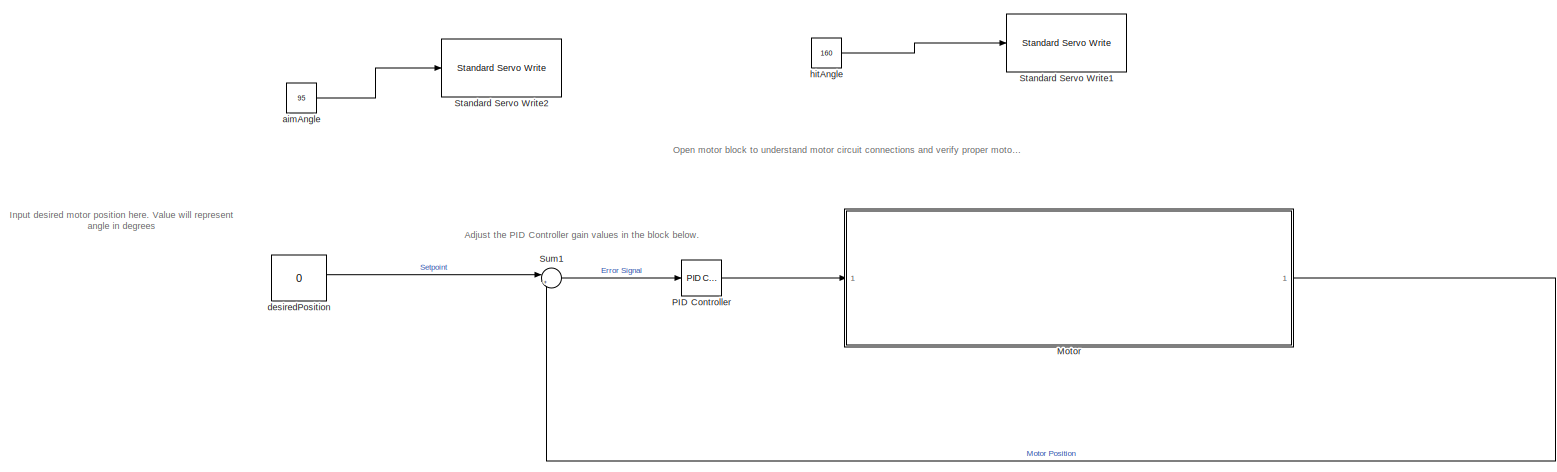
[diagram: root canvas - part 1/1, most of the canvas]
MODEL slx_7535fbd0ce79
KIND model
CONFIG AbsTol = auto
CONFIG EnableMultiTasking = on
CONFIG FixedStep = 0.001
CONFIG MaxStep = auto
CONFIG MinStep = auto
CONFIG RelTol = 1e-3
CONFIG SampleTimeConstraint = Unconstrained
CONFIG SolverName = FixedStepAuto
CONFIG StartTime = 0.0
CONFIG StopTime = 10000
WORKSPACE source: mxarray member
WORKSPACE Error = 0
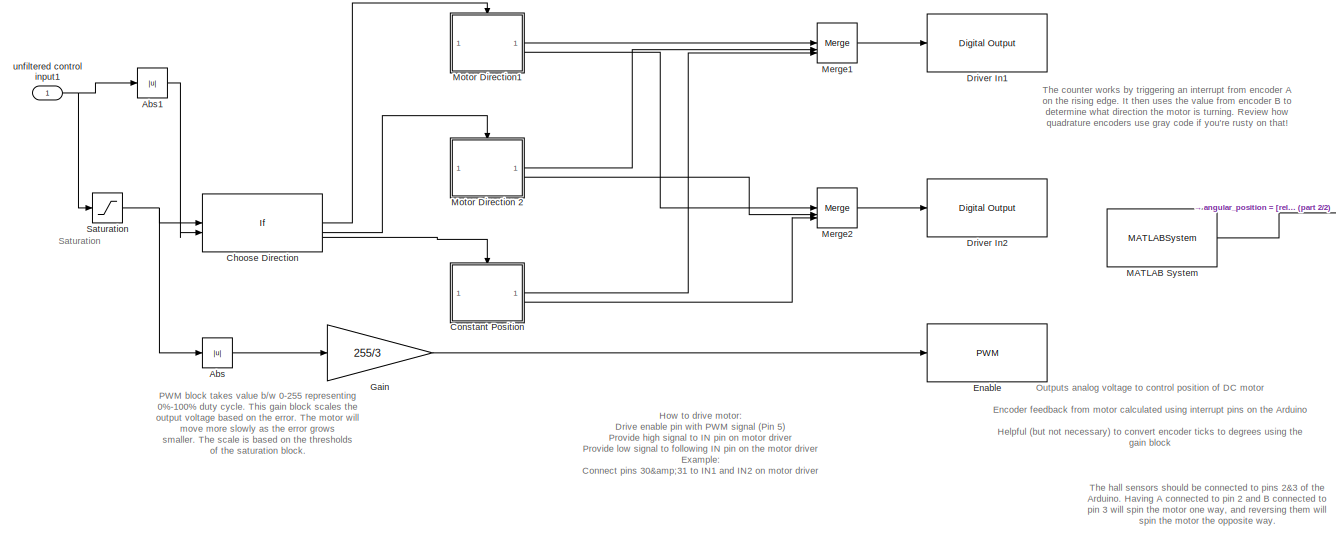
[diagram: Motor - part 1/2, most of the canvas]
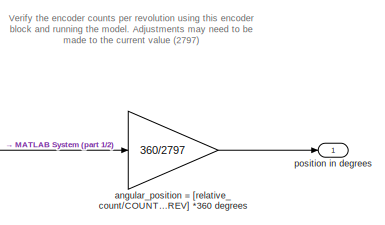
[diagram: Motor - part 2/2, middle right region]
BLOCK [SubSystem] Motor
BLOCK [Abs] Motor/Abs
  SaturateOnIntegerOverflow = off
BLOCK [Abs] Motor/Abs1
  SaturateOnIntegerOverflow = off
BLOCK [If] Motor/Choose Direction
  ElseIfExpressions = u1 < 0 & u2 > 3
  IfExpression = u1 > 0 & u2 > 3
  NumInputs = 2
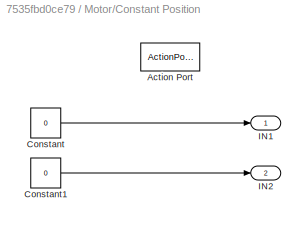
BLOCK [SubSystem] Motor/Constant Position
  TreatAsAtomicUnit = on
BLOCK [ActionPort] Motor/Constant Position/Action Port
  ActionPortLabel = else
BLOCK [Constant] Motor/Constant Position/Constant
  Value = 0
BLOCK [Constant] Motor/Constant Position/Constant1
  Value = 0
BLOCK [Outport] Motor/Constant Position/IN1
BLOCK [Outport] Motor/Constant Position/IN2
  Port = 2
BLOCK [Reference] Motor/Driver In1  REF=arduinolib/Digital Output
  SourceBlock = arduinolib/Digital Output
  SourceType = Arduino Digital Output
BLOCK [Reference] Motor/Driver In2  REF=arduinolib/Digital Output
  SourceBlock = arduinolib/Digital Output
  SourceType = Arduino Digital Output
BLOCK [Reference] Motor/Enable  REF=arduinolib/PWM
  SourceBlock = arduinolib/PWM
  SourceType = Arduino PWM
BLOCK [Gain] Motor/Gain
  Gain = 255/3
BLOCK [MATLABSystem] Motor/MATLAB System
  Encoder = 0
  MaskDisplay = disp('Encoder');\nport_label('output',1,'y');
  MaskType = Encoder_arduino
  PinA = 2
  PinB = 3
  SampleTime = 0.001
  System = Encoder_arduino
BLOCK [Merge] Motor/Merge1
  Inputs = 3
BLOCK [Merge] Motor/Merge2
  Inputs = 3
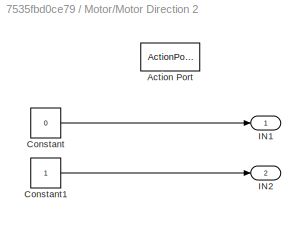
BLOCK [SubSystem] Motor/Motor Direction 2
  TreatAsAtomicUnit = on
BLOCK [ActionPort] Motor/Motor Direction 2/Action Port
  ActionPortLabel = elseif(u1 < 0 & u2 > 3)
BLOCK [Constant] Motor/Motor Direction 2/Constant
  Value = 0
BLOCK [Constant] Motor/Motor Direction 2/Constant1
BLOCK [Outport] Motor/Motor Direction 2/IN1
BLOCK [Outport] Motor/Motor Direction 2/IN2
  Port = 2
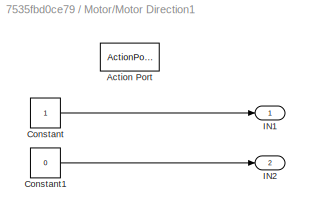
BLOCK [SubSystem] Motor/Motor Direction1
  TreatAsAtomicUnit = on
BLOCK [ActionPort] Motor/Motor Direction1/Action Port
  ActionPortLabel = if(u1 > 0 & u2 > 3)
BLOCK [Constant] Motor/Motor Direction1/Constant
BLOCK [Constant] Motor/Motor Direction1/Constant1
  Value = 0
BLOCK [Outport] Motor/Motor Direction1/IN1
BLOCK [Outport] Motor/Motor Direction1/IN2
  Port = 2
BLOCK [Saturate] Motor/Saturation
  LowerLimit = -5
  UpperLimit = 5
BLOCK [Gain] Motor/angular_position = [relative_count//COUNTS_PER_REV] *360 degrees
  Gain = 360/2797
BLOCK [Outport] Motor/position in degrees
  VectorParamsAs1DForOutWhenUnconnected = off
BLOCK [Inport] Motor/unfiltered control input1
BLOCK [Reference] PID Controller  REF=slpidlib/PID Controller
  SourceBlock = slpidlib/PID Controller
  SourceType = PID 1dof
BLOCK [Reference] Standard Servo Write1  REF=arduinolib/Standard Servo Write
  SourceBlock = arduinolib/Standard Servo Write
  SourceType = Arduino Standard Servo Write
BLOCK [Reference] Standard Servo Write2  REF=arduinolib/Standard Servo Write
  SourceBlock = arduinolib/Standard Servo Write
  SourceType = Arduino Standard Servo Write
BLOCK [Sum] Sum1
  Inputs = |+-
BLOCK [Constant] aimAngle
  Value = 95
BLOCK [Constant] desiredPosition
  Value = 0
BLOCK [Constant] hitAngle
  Value = 160
ANNOTATION (root): Input desired motor position here. Value will represent angle in degrees
ANNOTATION (root): Open motor block to understand motor circuit connections and verify proper motor encoder functionality.
ANNOTATION (root): Adjust the PID Controller gain values in the block below.
ANNOTATION Motor: PWM block takes value b/w 0-255 representing 0%-100% duty cycle. This gain block scales the output voltage based on the error. The motor will move more slowly as the error grows smaller. The scale is based on the thresholds of the saturation block.
ANNOTATION Motor: How to drive motor: Drive enable pin with PWM signal (Pin 5) Provide high signal to IN pin on motor driver Provide low signal to following IN pin on the motor driver Example: Connect pins 30&31 to IN1 and IN2 on motor driver Driving pin 30 high and pin 31 low will cause the motor to spin one direction Reversing pins 30 and 31 will cause the motor to spin the other direction
ANNOTATION Motor: Verify the encoder counts per revolution using this encoder block and running the model. Adjustments may need to be made to the current value (2797)
ANNOTATION Motor: Outputs analog voltage to control position of DC motor Encoder feedback from motor calculated using interrupt pins on the Arduino Helpful (but not necessary) to convert encoder ticks to degrees using the gain block
ANNOTATION Motor: Saturation
ANNOTATION Motor: The counter works by triggering an interrupt from encoder A on the rising edge. It then uses the value from encoder B to determine what direction the motor is turning. Review how quadrature encoders use gray code if you're rusty on that!
ANNOTATION Motor: The hall sensors should be connected to pins 2&3 of the Arduino. Having A connected to pin 2 and B connected to pin 3 will spin the motor one way, and reversing them will spin the motor the opposite way.
LINE Motor/Abs1:1 -> Motor/Choose Direction:2
LINE Motor/Abs:1 -> Motor/Gain:1
LINE Motor/Choose Direction:1 -> Motor/Motor Direction1:ifaction
LINE Motor/Choose Direction:2 -> Motor/Motor Direction 2:ifaction
LINE Motor/Choose Direction:3 -> Motor/Constant Position:ifaction
LINE Motor/Constant Position/Constant1:1 -> Motor/Constant Position/IN2:1
LINE Motor/Constant Position/Constant:1 -> Motor/Constant Position/IN1:1
LINE Motor/Constant Position:1 -> Motor/Merge1:3
LINE Motor/Constant Position:2 -> Motor/Merge2:3
LINE Motor/Gain:1 -> Motor/Enable:1
LINE Motor/MATLAB System:1 -> Motor/angular_position = [relative_count//COUNTS_PER_REV] *360 degrees:1
LINE Motor/Merge1:1 -> Motor/Driver In1:1
LINE Motor/Merge2:1 -> Motor/Driver In2:1
LINE Motor/Motor Direction 2/Constant1:1 -> Motor/Motor Direction 2/IN2:1
LINE Motor/Motor Direction 2/Constant:1 -> Motor/Motor Direction 2/IN1:1
LINE Motor/Motor Direction 2:1 -> Motor/Merge1:2
LINE Motor/Motor Direction 2:2 -> Motor/Merge2:2
LINE Motor/Motor Direction1/Constant1:1 -> Motor/Motor Direction1/IN2:1
LINE Motor/Motor Direction1/Constant:1 -> Motor/Motor Direction1/IN1:1
LINE Motor/Motor Direction1:1 -> Motor/Merge1:1
LINE Motor/Motor Direction1:2 -> Motor/Merge2:1
NET Motor/Saturation:1 -> Motor/Abs:1, Motor/Choose Direction:1
LINE Motor/angular_position = [relative_count//COUNTS_PER_REV] *360 degrees:1 -> Motor/position in degrees:1
NET Motor/unfiltered control input1:1 -> Motor/Abs1:1, Motor/Saturation:1
LINE Motor:1 -> Sum1:2
LINE PID Controller:1 -> Motor:1
LINE Sum1:1 -> PID Controller:1
LINE aimAngle:1 -> Standard Servo Write2:1
LINE desiredPosition:1 -> Sum1:1
LINE hitAngle:1 -> Standard Servo Write1:1
note: NET lines group one-source signal fan-out (src -> all destinations, sorted); 1:1 wires keep LINE
